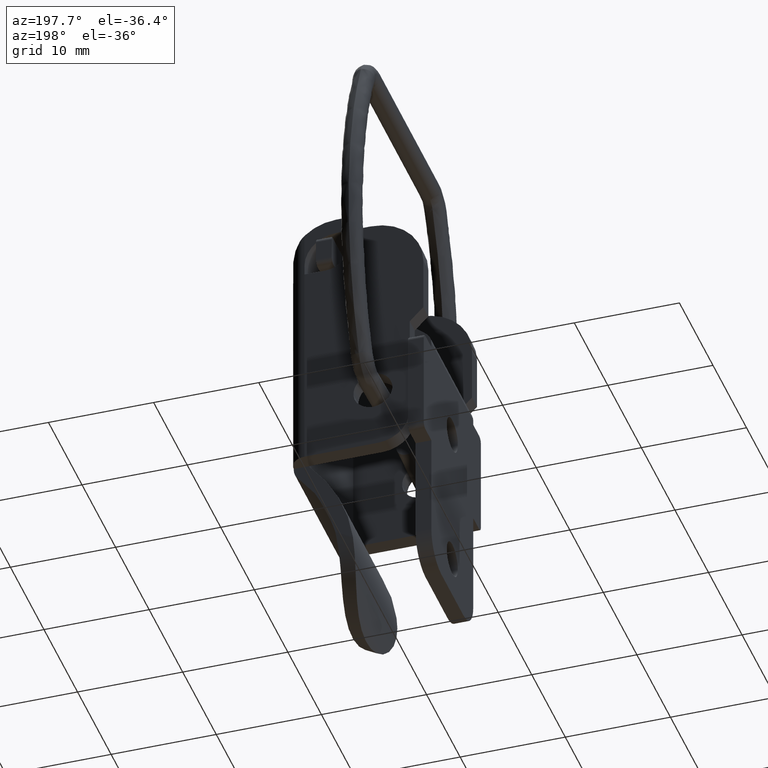
[diagram: clean part render]
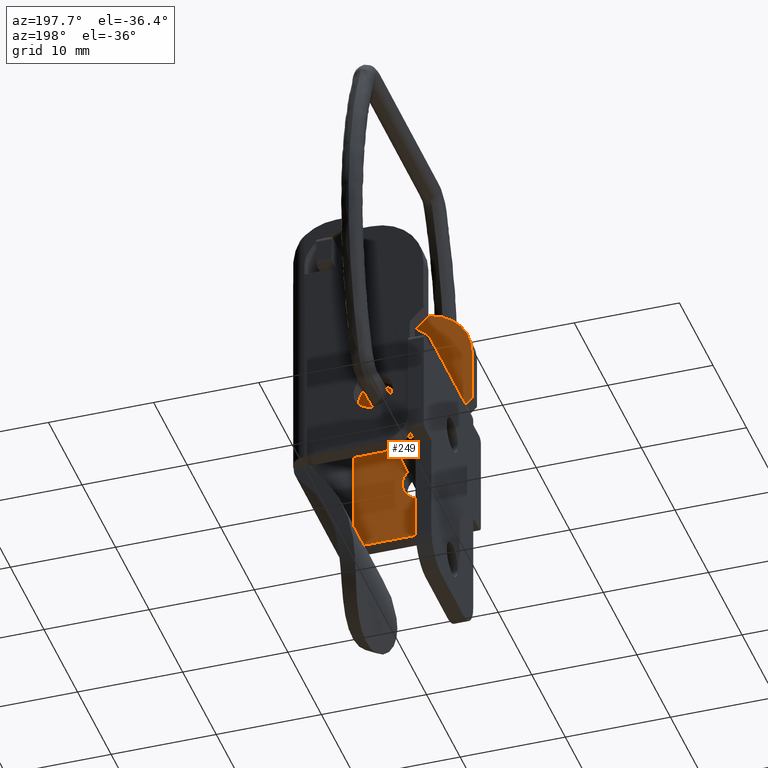
[diagram: same view with one face highlighted and labeled with its STEP entity id]
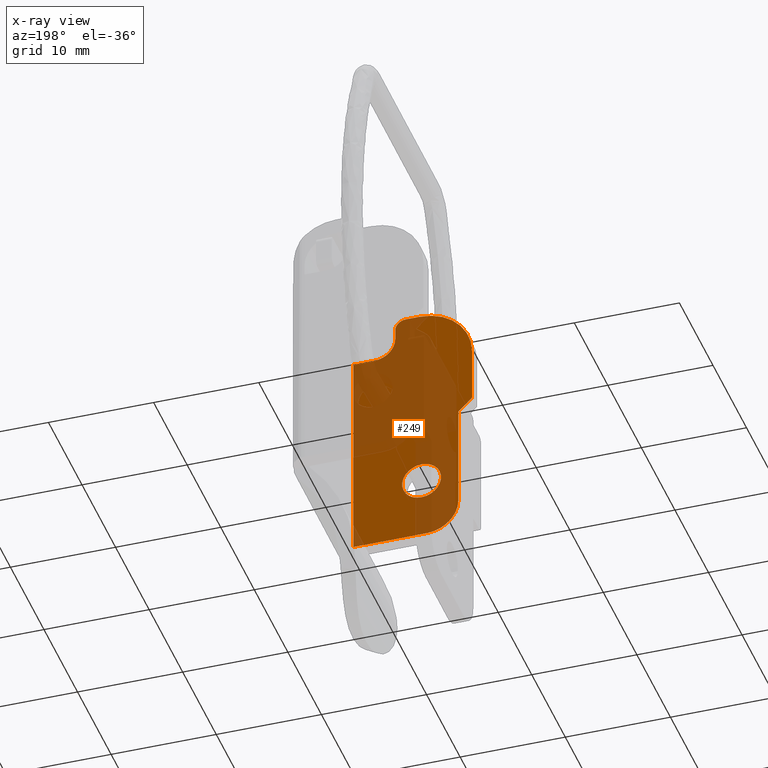
[diagram: x-ray of the same camera — body ghosted, the highlighted face saturated]
A machine part, auxiliary view. The second image highlights one B-rep face of the part: STEP entity #249.
The next image is the same camera in x-ray: the body ghosted, the highlighted face saturated — about 61% of this face is hidden behind the body in this view.
In plain terms, the highlighted planar face has unit normal (0, 1, 0).
Its self-contained STEP definition (entity closure, byte-faithful):
#249=ADVANCED_FACE('',(#1267,#1268),#1266,.T.);
#1266=PLANE('',#2049);
#1267=FACE_OUTER_BOUND('',#2050,.T.);
#1268=FACE_BOUND('',#2051,.T.);
#2046=CARTESIAN_POINT('',(-5.93000000000E+00,1.50000000000E+00,-8.45000000000E+00));
#2047=DIRECTION('',(-0.00000000000E+00,1.00000000000E+00,0.00000000000E+00));
#2048=DIRECTION('',(0.00000000000E+00,0.00000000000E+00,1.00000000000E+00));
#2049=AXIS2_PLACEMENT_3D('',#2046,#2047,#2048);
#2050=EDGE_LOOP('',(#2630,#2631,#2632,#2633,#2634,#2635,#2636,#2637,#2638,#2639,#2640,#2641,#2642));
#2051=EDGE_LOOP('',(#2643,#2644));
#2630=ORIENTED_EDGE('',*,*,#2949,.F.);
#2631=ORIENTED_EDGE('',*,*,#2972,.F.);
#2632=ORIENTED_EDGE('',*,*,#2973,.F.);
#2633=ORIENTED_EDGE('',*,*,#2919,.F.);
#2634=ORIENTED_EDGE('',*,*,#2923,.F.);
#2635=ORIENTED_EDGE('',*,*,#2926,.F.);
#2636=ORIENTED_EDGE('',*,*,#2929,.F.);
#2637=ORIENTED_EDGE('',*,*,#2932,.F.);
#2638=ORIENTED_EDGE('',*,*,#2935,.F.);
#2639=ORIENTED_EDGE('',*,*,#2938,.F.);
#2640=ORIENTED_EDGE('',*,*,#2941,.T.);
#2641=ORIENTED_EDGE('',*,*,#2944,.F.);
#2642=ORIENTED_EDGE('',*,*,#2947,.T.);
#2643=ORIENTED_EDGE('',*,*,#2974,.T.);
#2644=ORIENTED_EDGE('',*,*,#2975,.T.);
#2919=EDGE_CURVE('',#4523,#4530,#4531,.T.);
#2923=EDGE_CURVE('',#4550,#4523,#4557,.T.);
#2926=EDGE_CURVE('',#4570,#4550,#4577,.T.);
#2929=EDGE_CURVE('',#4590,#4570,#4597,.T.);
#2932=EDGE_CURVE('',#4610,#4590,#4617,.T.);
#2935=EDGE_CURVE('',#4630,#4610,#4637,.T.);
#2938=EDGE_CURVE('',#4650,#4630,#4657,.T.);
#2941=EDGE_CURVE('',#4650,#4670,#4677,.T.);
#2944=EDGE_CURVE('',#4690,#4670,#4697,.T.);
#2947=EDGE_CURVE('',#4690,#4710,#4717,.T.);
#2949=EDGE_CURVE('',#4215,#4710,#4729,.T.);
#2972=EDGE_CURVE('',#4880,#4215,#4881,.T.);
#2973=EDGE_CURVE('',#4530,#4880,#4887,.T.);
#2974=EDGE_CURVE('',#4893,#4894,#4895,.T.);
#2975=EDGE_CURVE('',#4894,#4893,#4901,.T.);
#4215=VERTEX_POINT('',#5808);
#4523=VERTEX_POINT('',#5992);
#4530=VERTEX_POINT('',#5996);
#4531=LINE('',#5997,#5998);
#4550=VERTEX_POINT('',#6007);
#4557=LINE('',#6011,#6012);
#4570=VERTEX_POINT('',#6018);
#4577=LINE('',#6022,#6023);
#4590=VERTEX_POINT('',#6030);
#4597=CIRCLE('',#6037,5.00000000000E+00);
#4610=VERTEX_POINT('',#6042);
#4617=LINE('',#6046,#6047);
#4630=VERTEX_POINT('',#6054);
#4637=CIRCLE('',#6061,1.00000000000E+00);
#4650=VERTEX_POINT('',#6066);
#4657=LINE('',#6070,#6071);
#4670=VERTEX_POINT('',#6078);
#4677=CIRCLE('',#6085,2.00000000000E+00);
#4690=VERTEX_POINT('',#6090);
#4697=LINE('',#6094,#6095);
#4710=VERTEX_POINT('',#6102);
#4717=CIRCLE('',#6109,1.50000000000E+00);
#4729=LINE('',#6113,#6114);
#4880=VERTEX_POINT('',#6201);
#4881=LINE('',#6202,#6203);
#4887=CIRCLE('',#6208,3.00000000000E+00);
#4893=VERTEX_POINT('',#6209);
#4894=VERTEX_POINT('',#6210);
#4895=CIRCLE('',#6214,1.85000000000E+00);
#4901=CIRCLE('',#6218,1.85000000000E+00);
#5808=CARTESIAN_POINT('',(6.49999999999E+00,1.50000000000E+00,-6.00000000000E+00));
#5992=CARTESIAN_POINT('',(-3.50000000000E+00,1.50000000000E+00,7.00000000000E+00));
#5996=CARTESIAN_POINT('',(-3.50000000000E+00,1.50000000000E+00,-3.00000000000E+00));
#5997=CARTESIAN_POINT('',(-3.50000000000E+00,1.50000000000E+00,7.00000000000E+00));
#5998=VECTOR('',#5999,1.00000000000E+01);
#5999=DIRECTION('',(0.00000000000E+00,0.00000000000E+00,-1.00000000000E+00));
#6007=CARTESIAN_POINT('',(-4.80000000000E+00,1.50000000000E+00,8.30000000000E+00));
#6011=CARTESIAN_POINT('',(-4.80000000000E+00,1.50000000000E+00,8.30000000000E+00));
#6012=VECTOR('',#6013,1.83847763108E+00);
#6013=DIRECTION('',(7.07106781187E-01,0.00000000000E+00,-7.07106781186E-01));
#6018=CARTESIAN_POINT('',(-4.80000000000E+00,1.50000000000E+00,1.35000000000E+01));
#6022=CARTESIAN_POINT('',(-4.80000000000E+00,1.50000000000E+00,1.35000000000E+01));
#6023=VECTOR('',#6024,5.20000000000E+00);
#6024=DIRECTION('',(0.00000000000E+00,0.00000000000E+00,-1.00000000000E+00));
#6030=CARTESIAN_POINT('',(2.00000000000E-01,1.50000000000E+00,1.85000000000E+01));
#6034=CARTESIAN_POINT('',(2.00000000000E-01,1.50000000000E+00,1.35000000000E+01));
#6035=DIRECTION('',(0.00000000000E+00,-1.00000000000E+00,0.00000000000E+00));
#6036=DIRECTION('',(-0.00000000000E+00,-0.00000000000E+00,-1.00000000000E+00));
#6037=AXIS2_PLACEMENT_3D('',#6034,#6035,#6036);
#6042=CARTESIAN_POINT('',(1.50000000000E+00,1.50000000000E+00,1.85000000000E+01));
#6046=CARTESIAN_POINT('',(1.50000000000E+00,1.50000000000E+00,1.85000000000E+01));
#6047=VECTOR('',#6048,1.30000000000E+00);
#6048=DIRECTION('',(-1.00000000000E+00,0.00000000000E+00,0.00000000000E+00));
#6054=CARTESIAN_POINT('',(2.50000000000E+00,1.50000000000E+00,1.75000000000E+01));
#6058=CARTESIAN_POINT('',(1.50000000000E+00,1.50000000000E+00,1.75000000000E+01));
#6059=DIRECTION('',(0.00000000000E+00,-1.00000000000E+00,0.00000000000E+00));
#6060=DIRECTION('',(-0.00000000000E+00,-0.00000000000E+00,-1.00000000000E+00));
#6061=AXIS2_PLACEMENT_3D('',#6058,#6059,#6060);
#6066=CARTESIAN_POINT('',(2.50000000000E+00,1.50000000000E+00,1.65000000000E+01));
#6070=CARTESIAN_POINT('',(2.50000000000E+00,1.50000000000E+00,1.65000000000E+01));
#6071=VECTOR('',#6072,1.00000000000E+00);
#6072=DIRECTION('',(0.00000000000E+00,0.00000000000E+00,1.00000000000E+00));
#6078=CARTESIAN_POINT('',(4.50000000000E+00,1.50000000000E+00,1.45000000000E+01));
#6082=CARTESIAN_POINT('',(4.50000000000E+00,1.50000000000E+00,1.65000000000E+01));
#6083=DIRECTION('',(0.00000000000E+00,-1.00000000000E+00,0.00000000000E+00));
#6084=DIRECTION('',(-0.00000000000E+00,-0.00000000000E+00,-1.00000000000E+00));
#6085=AXIS2_PLACEMENT_3D('',#6082,#6083,#6084);
#6090=CARTESIAN_POINT('',(6.45803989155E+00,1.50000000000E+00,1.45000000000E+01));
#6094=CARTESIAN_POINT('',(6.45803989155E+00,1.50000000000E+00,1.45000000000E+01));
#6095=VECTOR('',#6096,1.95803989155E+00);
#6096=DIRECTION('',(-1.00000000000E+00,0.00000000000E+00,0.00000000000E+00));
#6102=CARTESIAN_POINT('',(6.50000000000E+00,1.50000000000E+00,1.45005869984E+01));
#6106=CARTESIAN_POINT('',(6.45803989155E+00,1.50000000000E+00,1.60000000000E+01));
#6107=DIRECTION('',(0.00000000000E+00,-1.00000000000E+00,0.00000000000E+00));
#6108=DIRECTION('',(-0.00000000000E+00,-0.00000000000E+00,-1.00000000000E+00));
#6109=AXIS2_PLACEMENT_3D('',#6106,#6107,#6108);
#6113=CARTESIAN_POINT('',(6.50000000000E+00,1.50000000000E+00,-6.00000000000E+00));
#6114=VECTOR('',#6115,2.05005869984E+01);
#6115=DIRECTION('',(0.00000000000E+00,0.00000000000E+00,1.00000000000E+00));
#6201=CARTESIAN_POINT('',(-5.00000000000E-01,1.50000000000E+00,-6.00000000000E+00));
#6202=CARTESIAN_POINT('',(-5.00000000000E-01,1.50000000000E+00,-6.00000000000E+00));
#6203=VECTOR('',#6204,6.99999999999E+00);
#6204=DIRECTION('',(1.00000000000E+00,0.00000000000E+00,0.00000000000E+00));
#6205=CARTESIAN_POINT('',(-5.00000000000E-01,1.50000000000E+00,-3.00000000000E+00));
#6206=DIRECTION('',(0.00000000000E+00,-1.00000000000E+00,0.00000000000E+00));
#6207=DIRECTION('',(-0.00000000000E+00,-0.00000000000E+00,-1.00000000000E+00));
#6208=AXIS2_PLACEMENT_3D('',#6205,#6206,#6207);
#6209=CARTESIAN_POINT('',(0.00000000000E+00,1.49999999999E+00,1.85000000000E+00));
#6210=CARTESIAN_POINT('',(3.70074341542E-16,1.49999999999E+00,-1.85000000000E+00));
#6211=CARTESIAN_POINT('',(0.00000000000E+00,1.49999999999E+00,0.00000000000E+00));
#6212=DIRECTION('',(0.00000000000E+00,-1.00000000000E+00,0.00000000000E+00));
#6213=DIRECTION('',(-1.22460635382E-16,0.00000000000E+00,1.00000000000E+00));
#6214=AXIS2_PLACEMENT_3D('',#6211,#6212,#6213);
#6215=CARTESIAN_POINT('',(0.00000000000E+00,1.49999999999E+00,0.00000000000E+00));
#6216=DIRECTION('',(0.00000000000E+00,-1.00000000000E+00,0.00000000000E+00));
#6217=DIRECTION('',(-1.22460635382E-16,0.00000000000E+00,1.00000000000E+00));
#6218=AXIS2_PLACEMENT_3D('',#6215,#6216,#6217);